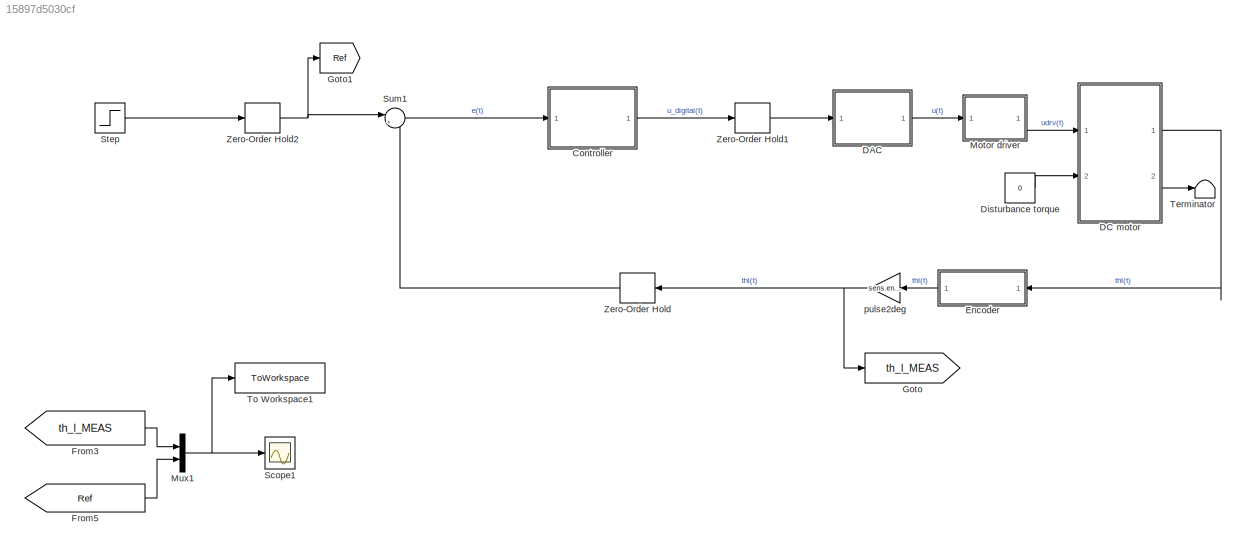
MODEL slx_15897d5030cf
KIND model
CONFIG AbsTol = auto
CONFIG EnableMultiTasking = off
CONFIG FixedStep = auto
CONFIG MaxStep = auto
CONFIG MinStep = auto
CONFIG RelTol = 1e-3
CONFIG SampleTimeConstraint = Unconstrained
CONFIG SolverName = ode45
CONFIG StartTime = 0.0
CONFIG StopTime = 1.5
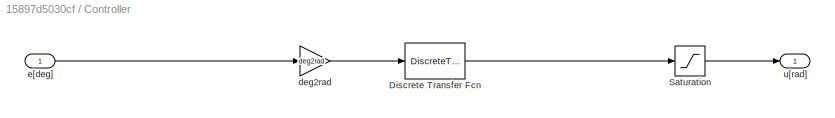
BLOCK [SubSystem] Controller
  Ports = [1, 1]
  RequestExecContextInheritance = off
BLOCK [DiscreteTransferFcn] Controller/Discrete Transfer Fcn
  Denominator = zoh_den
  InputPortMap = u0
  Numerator = zoh_num
  Ports = [1, 1]
BLOCK [Saturate] Controller/Saturation
  LowerLimit = daq.dac.vss
  UpperLimit = daq.dac.vdd
BLOCK [Gain] Controller/deg2rad
  Gain = deg2rad
BLOCK [Inport] Controller/e[deg]
  Unit = deg
BLOCK [Outport] Controller/u[rad]
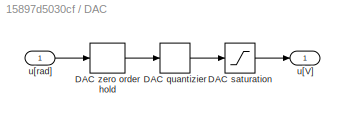
BLOCK [SubSystem] DAC
  Ports = [1, 1]
  RequestExecContextInheritance = off
BLOCK [Quantizer] DAC/DAC quantizier
  QuantizationInterval = daq.dac.q
BLOCK [Saturate] DAC/DAC saturation
  LowerLimit = -10
  UpperLimit = 10
BLOCK [ZeroOrderHold] DAC/DAC zero order hold
  SampleTime = sens.enc.T_s
BLOCK [Outport] DAC/u[V]
BLOCK [Inport] DAC/u[rad]
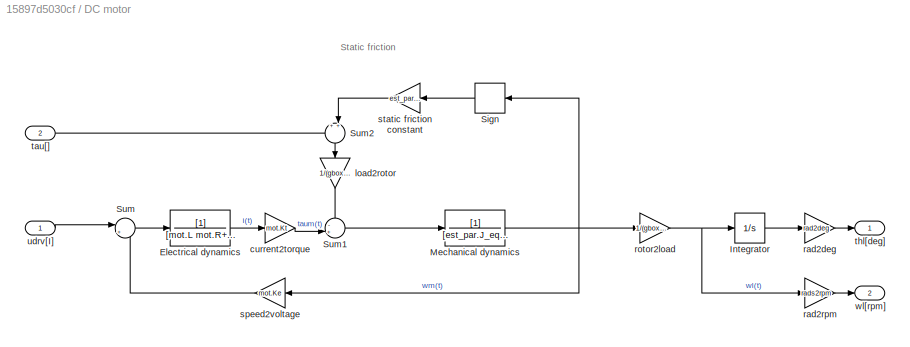
BLOCK [SubSystem] DC motor
  Ports = [2, 2]
  RequestExecContextInheritance = off
BLOCK [TransferFcn] DC motor/Electrical dynamics
  Denominator = [mot.L mot.R+sens.curr.Rs]
BLOCK [Integrator] DC motor/Integrator
  Ports = [1, 1]
BLOCK [TransferFcn] DC motor/Mechanical dynamics
  Denominator = [est_par.J_eq est_par.B_eq]
BLOCK [Signum] DC motor/Sign
  ZeroCross = off
BLOCK [Sum] DC motor/Sum
  Inputs = |+-
  Ports = [2, 1]
BLOCK [Sum] DC motor/Sum1
  Inputs = -+|
  Ports = [2, 1]
BLOCK [Sum] DC motor/Sum2
  Inputs = ++|
  NameLocation = left
  Ports = [2, 1]
BLOCK [Gain] DC motor/current2torque
  Gain = mot.Kt
BLOCK [Gain] DC motor/load2rotor
  Gain = 1/(gbox.N)
  NameLocation = left
BLOCK [Gain] DC motor/rad2deg
  Gain = rad2deg
BLOCK [Gain] DC motor/rad2rpm
  Gain = rads2rpm
BLOCK [Gain] DC motor/rotor2load
  Gain = 1/(gbox.N)
BLOCK [Gain] DC motor/speed2voltage
  Gain = mot.Ke
BLOCK [Gain] DC motor/static friction constant
  Gain = est_par.tau_sf
BLOCK [Inport] DC motor/tau[]
  Port = 2
  Unit = V
BLOCK [Outport] DC motor/thl[deg]
  Unit = deg
BLOCK [Inport] DC motor/udrv[I]
  Unit = V
BLOCK [Outport] DC motor/wl[rpm]
  Port = 2
  Unit = rpm
BLOCK [Constant] Disturbance torque
  Value = 0
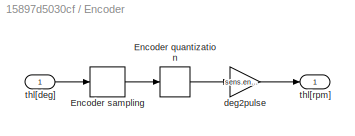
BLOCK [SubSystem] Encoder
  Ports = [1, 1]
  RequestExecContextInheritance = off
BLOCK [Quantizer] Encoder/Encoder quantization
  QuantizationInterval = sens.enc.q
BLOCK [ZeroOrderHold] Encoder/Encoder sampling
  SampleTime = sens.enc.T_s
BLOCK [Gain] Encoder/deg2pulse
  Gain = sens.enc.deg2pulse
BLOCK [Inport] Encoder/thl[deg]
BLOCK [Outport] Encoder/thl[rpm]
BLOCK [From] From3
  GotoTag = th_l_MEAS
BLOCK [From] From5
  GotoTag = Ref
BLOCK [Goto] Goto
  GotoTag = th_l_MEAS
BLOCK [Goto] Goto1
  GotoTag = Ref
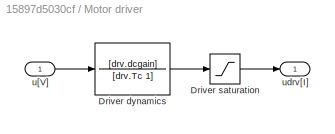
BLOCK [SubSystem] Motor driver
  Ports = [1, 1]
  RequestExecContextInheritance = off
BLOCK [TransferFcn] Motor driver/Driver dynamics
  Denominator = [drv.Tc 1]
  Numerator = [drv.dcgain]
BLOCK [Saturate] Motor driver/Driver saturation
  LowerLimit = -12
  UpperLimit = 12
BLOCK [Inport] Motor driver/u[V]
BLOCK [Outport] Motor driver/udrv[I]
BLOCK [Mux] Mux1
  DisplayOption = bar
  Inputs = 2
  Ports = [2, 1]
BLOCK [Scope] Scope1
  Floating = off
  NumInputPorts = 1
  Ports = [1]
  ScopeSpecificationString = Simulink.scopes.TimeScopeBlockCfg('CurrentConfiguration', extmgr.ConfigurationSet(extmgr.Configuration('Core','General UI',true),extmgr.Configuration('Core','Source UI',true),extmgr.Configuration('Sources','WiredSimulink',true,'DataLoggingVariableName','ScopeData1'),extmgr.Configuration('Visuals','Time Domain',true,'SerializedDisplays',{struct('MinYLimReal','-12.91992','MaxYLimReal','116.2793','YL...<+1437ch>
BLOCK [Step] Step
  After = 50
  SampleTime = 0
  Time = 0
BLOCK [Sum] Sum1
  Inputs = |+-
  Ports = [2, 1]
BLOCK [Terminator] Terminator
BLOCK [ToWorkspace] To Workspace1
  FixptAsFi = on
  MaxDataPoints = inf
  Ports = [1]
  SampleTime = -1
  SaveFormat = Structure With Time
  VariableName = simres
BLOCK [ZeroOrderHold] Zero-Order Hold
  NameLocation = top
  SampleTime = T_samp
BLOCK [ZeroOrderHold] Zero-Order Hold1
  SampleTime = T_samp
BLOCK [ZeroOrderHold] Zero-Order Hold2
  SampleTime = T_samp
BLOCK [Gain] pulse2deg
  Gain = sens.enc.pulse2deg
ANNOTATION DC motor: Static friction
LINE Controller/Discrete Transfer Fcn:1 -> Controller/Saturation:1
LINE Controller/Saturation:1 -> Controller/u[rad]:1
LINE Controller/deg2rad:1 -> Controller/Discrete Transfer Fcn:1
LINE Controller/e[deg]:1 -> Controller/deg2rad:1
LINE Controller:1 -> Zero-Order Hold1:1
LINE DAC/DAC quantizier:1 -> DAC/DAC saturation:1
LINE DAC/DAC saturation:1 -> DAC/u[V]:1
LINE DAC/DAC zero order hold:1 -> DAC/DAC quantizier:1
LINE DAC/u[rad]:1 -> DAC/DAC zero order hold:1
LINE DAC:1 -> Motor driver:1
LINE DC motor/Electrical dynamics:1 -> DC motor/current2torque:1
LINE DC motor/Integrator:1 -> DC motor/rad2deg:1
NET DC motor/Mechanical dynamics:1 -> DC motor/Sign:1, DC motor/rotor2load:1, DC motor/speed2voltage:1
LINE DC motor/Sign:1 -> DC motor/static friction constant:1
LINE DC motor/Sum1:1 -> DC motor/Mechanical dynamics:1
LINE DC motor/Sum2:1 -> DC motor/load2rotor:1
LINE DC motor/Sum:1 -> DC motor/Electrical dynamics:1
LINE DC motor/current2torque:1 -> DC motor/Sum1:2
LINE DC motor/load2rotor:1 -> DC motor/Sum1:1
LINE DC motor/rad2deg:1 -> DC motor/thl[deg]:1
LINE DC motor/rad2rpm:1 -> DC motor/wl[rpm]:1
NET DC motor/rotor2load:1 -> DC motor/Integrator:1, DC motor/rad2rpm:1
LINE DC motor/speed2voltage:1 -> DC motor/Sum:2
LINE DC motor/static friction constant:1 -> DC motor/Sum2:2
LINE DC motor/tau[]:1 -> DC motor/Sum2:1
LINE DC motor/udrv[I]:1 -> DC motor/Sum:1
LINE DC motor:1 -> Encoder:1
LINE DC motor:2 -> Terminator:1
LINE Disturbance torque:1 -> DC motor:2
LINE Encoder/Encoder quantization:1 -> Encoder/deg2pulse:1
LINE Encoder/Encoder sampling:1 -> Encoder/Encoder quantization:1
LINE Encoder/deg2pulse:1 -> Encoder/thl[rpm]:1
LINE Encoder/thl[deg]:1 -> Encoder/Encoder sampling:1
LINE Encoder:1 -> pulse2deg:1
LINE From3:1 -> Mux1:1
LINE From5:1 -> Mux1:2
LINE Motor driver/Driver dynamics:1 -> Motor driver/Driver saturation:1
LINE Motor driver/Driver saturation:1 -> Motor driver/udrv[I]:1
LINE Motor driver/u[V]:1 -> Motor driver/Driver dynamics:1
LINE Motor driver:1 -> DC motor:1
NET Mux1:1 -> Scope1:1, To Workspace1:1
LINE Step:1 -> Zero-Order Hold2:1
LINE Sum1:1 -> Controller:1
LINE Zero-Order Hold1:1 -> DAC:1
NET Zero-Order Hold2:1 -> Goto1:1, Sum1:1
LINE Zero-Order Hold:1 -> Sum1:2
NET pulse2deg:1 -> Goto:1, Zero-Order Hold:1
note: NET lines group one-source signal fan-out (src -> all destinations, sorted); 1:1 wires keep LINE
